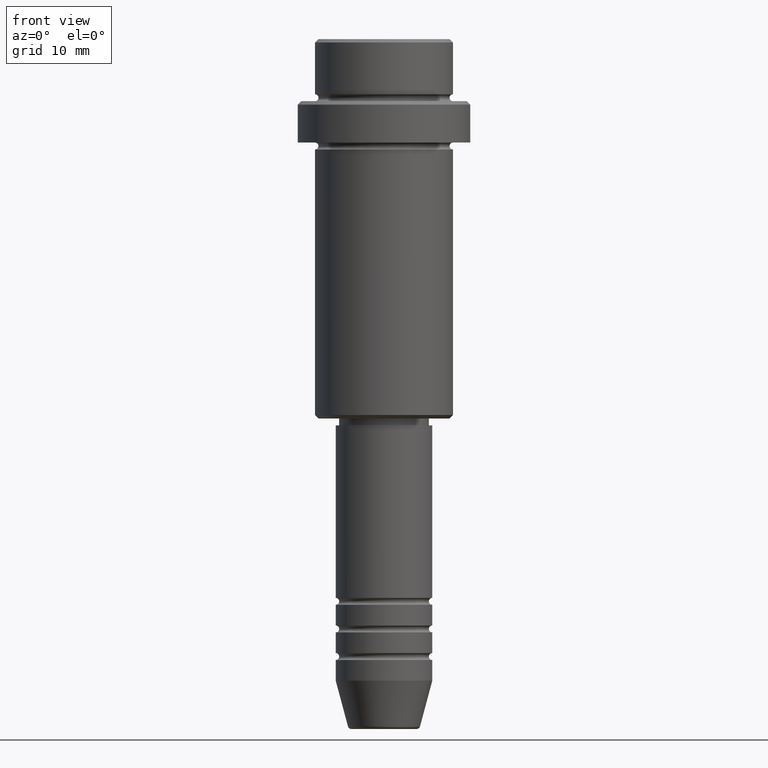
[diagram: clean part render]
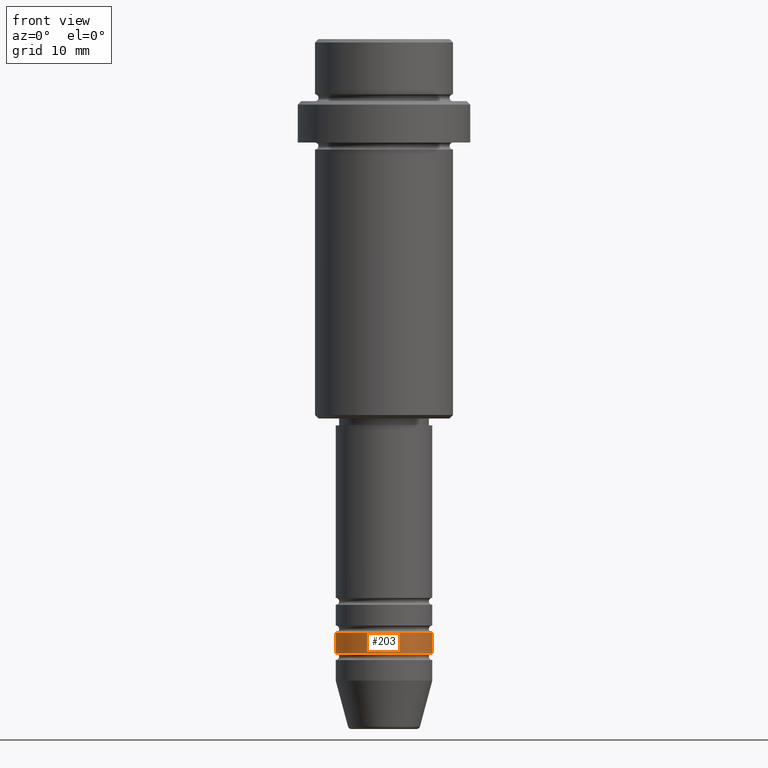
[diagram: same view with one face highlighted and labeled with its STEP entity id]
A machine part, front view. The second image highlights one B-rep face of the part: STEP entity #203.
In plain terms, the highlighted cylindrical surface (partial cylindrical patch) has radius 7 mm, axis along (-0, -0, 1).
Its self-contained STEP definition (entity closure, byte-faithful):
#78 = VECTOR ( 'NONE', #163, 1000.000000000000000 ) ;
#111 = EDGE_CURVE ( 'NONE', #454, #973, #757, .T. ) ;
#113 = VERTEX_POINT ( 'NONE', #536 ) ;
#137 = CARTESIAN_POINT ( 'NONE',  ( 7.000000000000000000, 0.000000000000000000, -85.99999999999988631 ) ) ;
#156 = CYLINDRICAL_SURFACE ( 'NONE', #1120, 7.000000000000000000 ) ;
#163 = DIRECTION ( 'NONE',  ( -0.000000000000000000, -0.000000000000000000, 1.000000000000000000 ) ) ;
#203 = ADVANCED_FACE ( 'NONE', ( #910 ), #156, .T. ) ;
#245 = EDGE_LOOP ( 'NONE', ( #756, #384, #452, #840 ) ) ;
#267 = DIRECTION ( 'NONE',  ( 1.000000000000000000, 0.000000000000000000, 0.000000000000000000 ) ) ;
#312 = CARTESIAN_POINT ( 'NONE',  ( 0.000000000000000000, 0.000000000000000000, -85.99999999999988631 ) ) ;
#384 = ORIENTED_EDGE ( 'NONE', *, *, #1237, .T. ) ;
#437 = AXIS2_PLACEMENT_3D ( 'NONE', #312, #1193, #639 ) ;
#452 = ORIENTED_EDGE ( 'NONE', *, *, #496, .T. ) ;
#454 = VERTEX_POINT ( 'NONE', #714 ) ;
#496 = EDGE_CURVE ( 'NONE', #1177, #973, #1312, .T. ) ;
#523 = CARTESIAN_POINT ( 'NONE',  ( 7.000000000000000000, 0.000000000000000000, -88.99999999999988631 ) ) ;
#536 = CARTESIAN_POINT ( 'NONE',  ( -7.000000000000000000, 8.572527594031473190E-16, -88.99999999999988631 ) ) ;
#557 = AXIS2_PLACEMENT_3D ( 'NONE', #1259, #599, #821 ) ;
#599 = DIRECTION ( 'NONE',  ( -0.000000000000000000, -0.000000000000000000, 1.000000000000000000 ) ) ;
#639 = DIRECTION ( 'NONE',  ( 1.000000000000000000, 0.000000000000000000, 0.000000000000000000 ) ) ;
#663 = CARTESIAN_POINT ( 'NONE',  ( 7.000000000000000000, 0.000000000000000000, 0.000000000000000000 ) ) ;
#679 = DIRECTION ( 'NONE',  ( -0.000000000000000000, -0.000000000000000000, 1.000000000000000000 ) ) ;
#701 = LINE ( 'NONE', #1134, #78 ) ;
#714 = CARTESIAN_POINT ( 'NONE',  ( -7.000000000000000000, 8.572527594031473190E-16, -85.99999999999988631 ) ) ;
#756 = ORIENTED_EDGE ( 'NONE', *, *, #807, .F. ) ;
#757 = CIRCLE ( 'NONE', #437, 7.000000000000000000 ) ;
#807 = EDGE_CURVE ( 'NONE', #113, #454, #701, .T. ) ;
#821 = DIRECTION ( 'NONE',  ( 1.000000000000000000, 0.000000000000000000, 0.000000000000000000 ) ) ;
#840 = ORIENTED_EDGE ( 'NONE', *, *, #111, .F. ) ;
#852 = CIRCLE ( 'NONE', #557, 7.000000000000000000 ) ;
#910 = FACE_OUTER_BOUND ( 'NONE', #245, .T. ) ;
#973 = VERTEX_POINT ( 'NONE', #137 ) ;
#985 = DIRECTION ( 'NONE',  ( -0.000000000000000000, -0.000000000000000000, 1.000000000000000000 ) ) ;
#1120 = AXIS2_PLACEMENT_3D ( 'NONE', #1342, #679, #267 ) ;
#1134 = CARTESIAN_POINT ( 'NONE',  ( -7.000000000000000000, 8.572527594031473190E-16, 0.000000000000000000 ) ) ;
#1177 = VERTEX_POINT ( 'NONE', #523 ) ;
#1193 = DIRECTION ( 'NONE',  ( -0.000000000000000000, -0.000000000000000000, 1.000000000000000000 ) ) ;
#1237 = EDGE_CURVE ( 'NONE', #113, #1177, #852, .T. ) ;
#1259 = CARTESIAN_POINT ( 'NONE',  ( 0.000000000000000000, 0.000000000000000000, -88.99999999999988631 ) ) ;
#1312 = LINE ( 'NONE', #663, #1400 ) ;
#1342 = CARTESIAN_POINT ( 'NONE',  ( 0.000000000000000000, 0.000000000000000000, 0.000000000000000000 ) ) ;
#1400 = VECTOR ( 'NONE', #985, 1000.000000000000000 ) ;